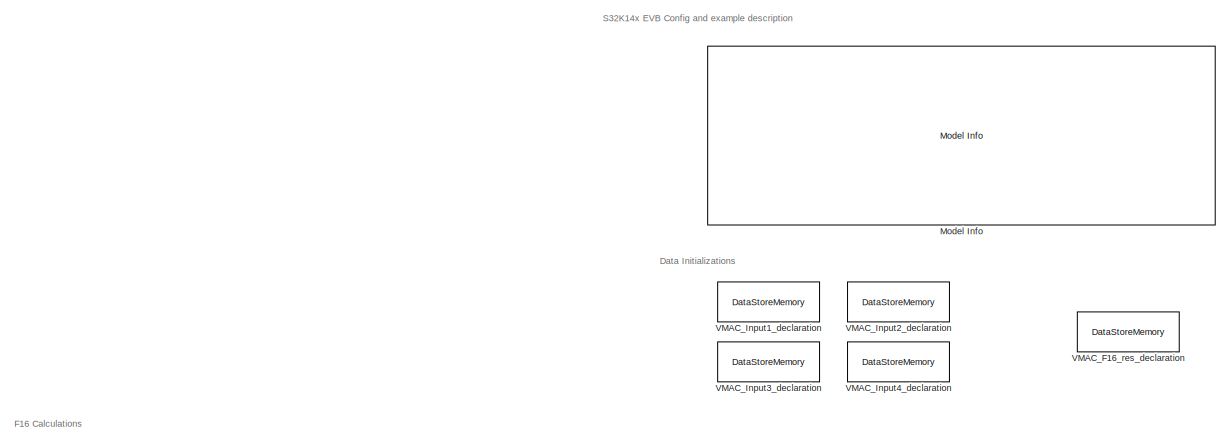
[diagram: root canvas - part 1/6, top left region]
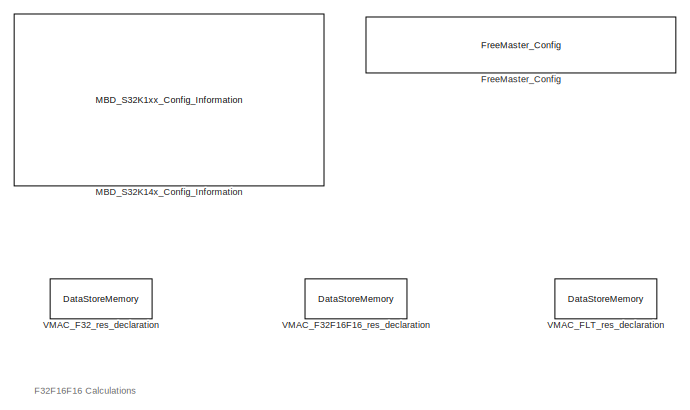
[diagram: root canvas - part 2/6, top center region]
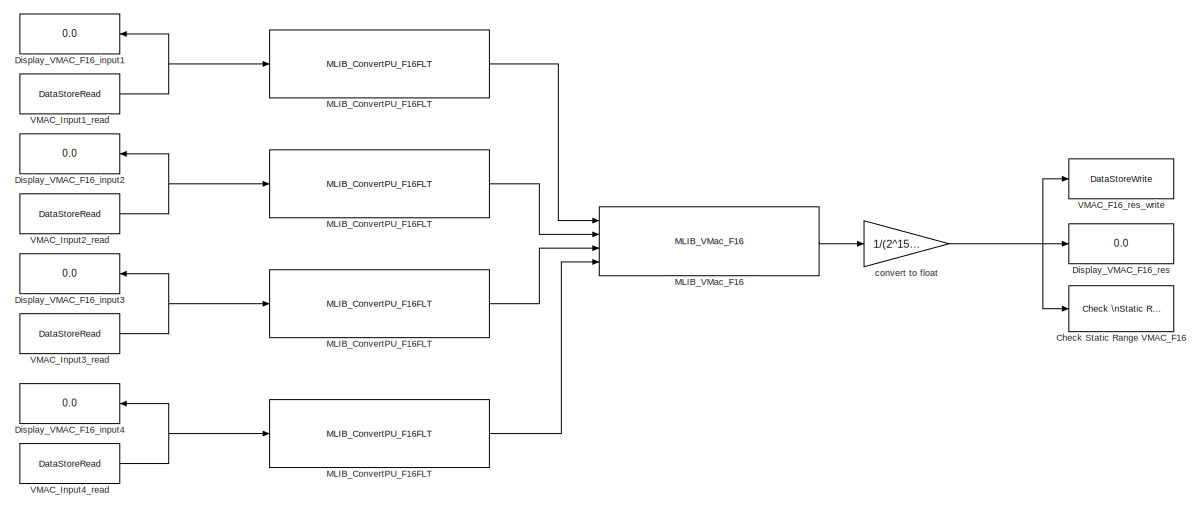
[diagram: root canvas - part 3/6, middle left region]
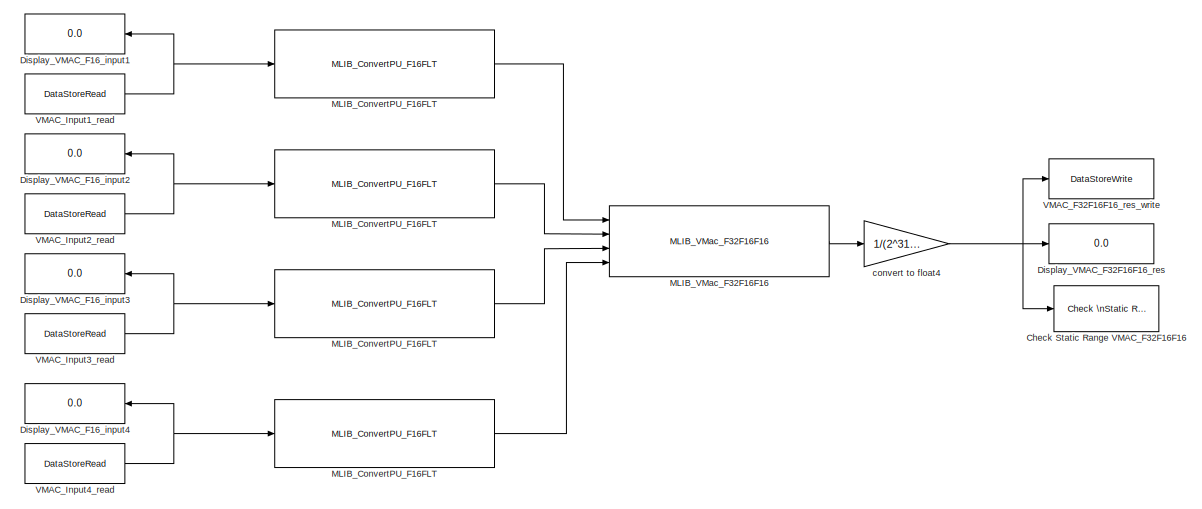
[diagram: root canvas - part 4/6, middle right region]
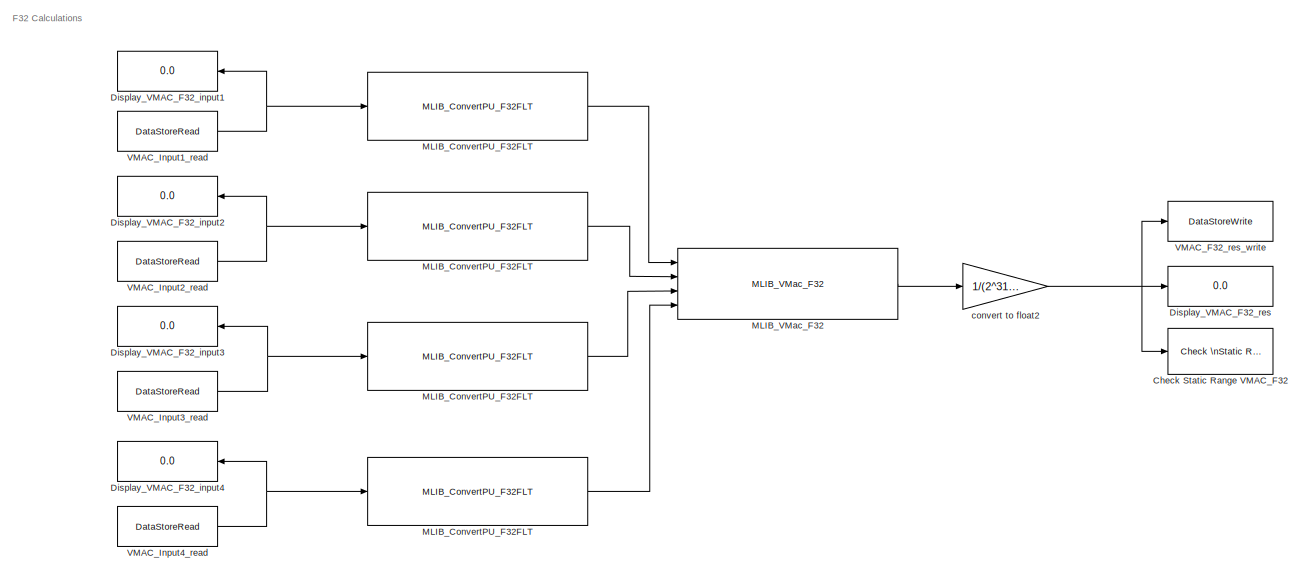
[diagram: root canvas - part 5/6, bottom left region]
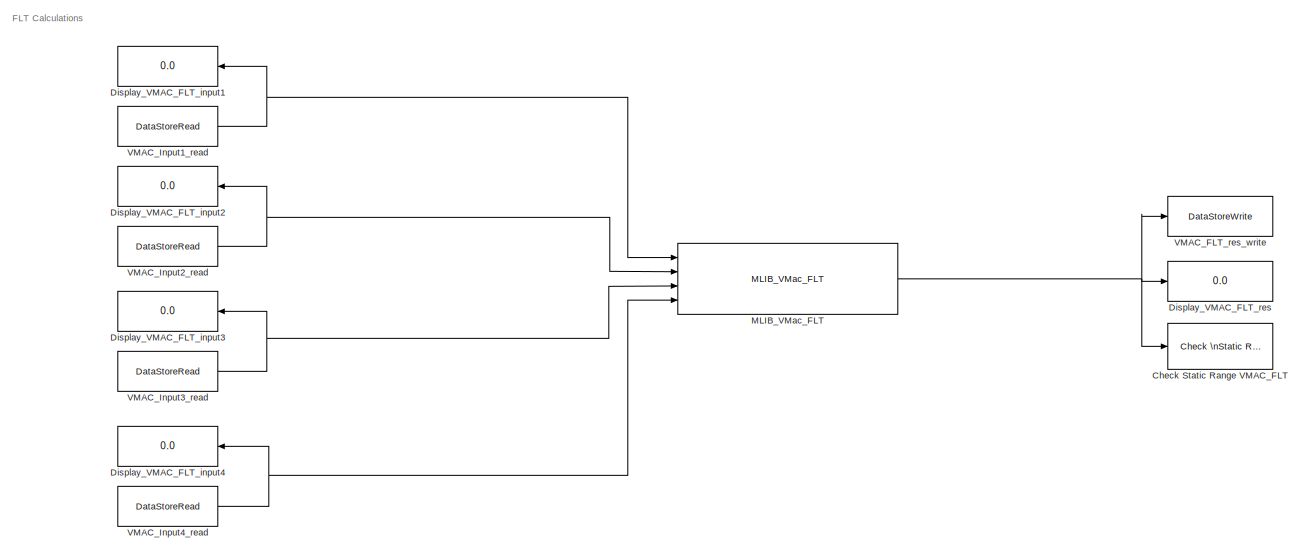
[diagram: root canvas - part 6/6, bottom right region]
MODEL ammclib_mlib_vmac_s32k14x
KIND model
CONFIG InitFcn = mbd_s32k_consistency_checks(bdroot(gcs));
BLOCK [Reference]    MLIB_ConvertPU_F16FLT    REF=ammclib_bam_s32k14x/MLIB/bam_f16/MLIB_ConvertPU_F16FLT  (lib defined in mdl_f341c9dd7fd9)
  Ports = [1, 1]
  SID = 747
  SourceBlock = ammclib_bam_s32k14x/MLIB/bam_f16/MLIB_ConvertPU_F16FLT
  SourceType = MLIB_ConvertPU_F16
BLOCK [Reference]   MLIB_ConvertPU_F16FLT   REF=ammclib_bam_s32k14x/MLIB/bam_f16/MLIB_ConvertPU_F16FLT  (lib defined in mdl_f341c9dd7fd9)
  Ports = [1, 1]
  SID = 752
  SourceBlock = ammclib_bam_s32k14x/MLIB/bam_f16/MLIB_ConvertPU_F16FLT
  SourceType = MLIB_ConvertPU_F16
BLOCK [Reference]   MLIB_ConvertPU_F16FLT     REF=ammclib_bam_s32k14x/MLIB/bam_f16/MLIB_ConvertPU_F16FLT  (lib defined in mdl_f341c9dd7fd9)
  Ports = [1, 1]
  SID = 753
  SourceBlock = ammclib_bam_s32k14x/MLIB/bam_f16/MLIB_ConvertPU_F16FLT
  SourceType = MLIB_ConvertPU_F16
BLOCK [Reference]   MLIB_ConvertPU_F16FLT       REF=ammclib_bam_s32k14x/MLIB/bam_f16/MLIB_ConvertPU_F16FLT  (lib defined in mdl_f341c9dd7fd9)
  Ports = [1, 1]
  SID = 754
  SourceBlock = ammclib_bam_s32k14x/MLIB/bam_f16/MLIB_ConvertPU_F16FLT
  SourceType = MLIB_ConvertPU_F16
BLOCK [DataStoreRead]   VMAC_Input4_read
  DataStoreName = VMAC_Input4
  Ports = [0, 1]
  SID = 759
BLOCK [Display]  Display_VMAC_F16_input3
  Decimation = 1
  Format = long
  Ports = [1]
  SID = 750
BLOCK [Display]  Display_VMAC_F16_input4
  Decimation = 1
  Format = long
  Ports = [1]
  SID = 751
BLOCK [Reference]  MLIB_ConvertPU_F16FLT  REF=ammclib_bam_s32k14x/MLIB/bam_f16/MLIB_ConvertPU_F16FLT  (lib defined in mdl_f341c9dd7fd9)
  Ports = [1, 1]
  SID = 734
  SourceBlock = ammclib_bam_s32k14x/MLIB/bam_f16/MLIB_ConvertPU_F16FLT
  SourceType = MLIB_ConvertPU_F16
BLOCK [DataStoreRead]  VMAC_Input3_read
  DataStoreName = VMAC_Input3
  Ports = [0, 1]
  SID = 758
BLOCK [Reference] Check Static Range VMAC_F16  REF=simulink/Model\nVerification/Check \nStatic Range
  Description = 0.194 <= u <= 0.196
  Ports = [1]
  SID = 585
  SourceBlock = simulink/Model\nVerification/Check \nStatic Range
  SourceProductBaseCode = SL
  SourceProductName = Simulink
  SourceType = Checks_SRange
  enabled = on
  export = off
  icon = graphic
  max = 0.196
  max_included = on
  min = 0.194
  min_included = on
  stopWhenAssertionFail = on
BLOCK [Reference] Check Static Range VMAC_F32   REF=simulink/Model\nVerification/Check \nStatic Range
  Description = 0.194 <= u <= 0.196
  Ports = [1]
  SID = 746
  SourceBlock = simulink/Model\nVerification/Check \nStatic Range
  SourceProductBaseCode = SL
  SourceProductName = Simulink
  SourceType = Checks_SRange
  enabled = on
  export = off
  icon = graphic
  max = 0.196
  max_included = on
  min = 0.194
  min_included = on
  stopWhenAssertionFail = on
BLOCK [Reference] Check Static Range VMAC_F32F16F16   REF=simulink/Model\nVerification/Check \nStatic Range
  Description = 0.194 <= u <= 0.196
  Ports = [1]
  SID = 761
  SourceBlock = simulink/Model\nVerification/Check \nStatic Range
  SourceProductBaseCode = SL
  SourceProductName = Simulink
  SourceType = Checks_SRange
  enabled = on
  export = off
  icon = graphic
  max = 0.196
  max_included = on
  min = 0.194
  min_included = on
  stopWhenAssertionFail = on
BLOCK [Reference] Check Static Range VMAC_FLT   REF=simulink/Model\nVerification/Check \nStatic Range
  Description = 0.194 <= u <= 0.196
  Ports = [1]
  SID = 767
  SourceBlock = simulink/Model\nVerification/Check \nStatic Range
  SourceProductBaseCode = SL
  SourceProductName = Simulink
  SourceType = Checks_SRange
  enabled = on
  export = off
  icon = graphic
  max = 0.196
  max_included = on
  min = 0.194
  min_included = on
  stopWhenAssertionFail = on
BLOCK [Display] Display_VMAC_F16_input1
  Decimation = 1
  Format = long
  Ports = [1]
  SID = 584
BLOCK [Display] Display_VMAC_F16_input1   
  Decimation = 1
  Format = long
  Ports = [1]
  SID = 748
BLOCK [Display] Display_VMAC_F16_input2
  Decimation = 1
  Format = long
  Ports = [1]
  SID = 634
BLOCK [Display] Display_VMAC_F16_input2    
  Decimation = 1
  Format = long
  Ports = [1]
  SID = 749
BLOCK [Display] Display_VMAC_F16_input3
  Decimation = 1
  Format = long
  Ports = [1]
  SID = 730
BLOCK [Display] Display_VMAC_F16_input4
  Decimation = 1
  Format = long
  Ports = [1]
  SID = 733
BLOCK [Display] Display_VMAC_F16_res
  Decimation = 1
  Format = long
  Ports = [1]
  SID = 579
BLOCK [Display] Display_VMAC_F32F16F16_res
  Decimation = 1
  Format = long
  Ports = [1]
  SID = 712
BLOCK [Display] Display_VMAC_F32_input1
  Decimation = 1
  Format = long
  Ports = [1]
  SID = 646
BLOCK [Display] Display_VMAC_F32_input2 
  Decimation = 1
  Format = long
  Ports = [1]
  SID = 647
BLOCK [Display] Display_VMAC_F32_input3
  Decimation = 1
  Format = long
  Ports = [1]
  SID = 739
BLOCK [Display] Display_VMAC_F32_input4
  Decimation = 1
  Format = long
  Ports = [1]
  SID = 742
BLOCK [Display] Display_VMAC_F32_res
  Decimation = 1
  Format = long
  Ports = [1]
  SID = 648
BLOCK [Display] Display_VMAC_FLT_input1
  Decimation = 1
  Format = long
  Ports = [1]
  SID = 667
BLOCK [Display] Display_VMAC_FLT_input2
  Decimation = 1
  Format = long
  Ports = [1]
  SID = 668
BLOCK [Display] Display_VMAC_FLT_input3
  Decimation = 1
  Format = long
  Ports = [1]
  SID = 762
BLOCK [Display] Display_VMAC_FLT_input4
  Decimation = 1
  Format = long
  Ports = [1]
  SID = 764
BLOCK [Display] Display_VMAC_FLT_res
  Decimation = 1
  Format = long
  Ports = [1]
  SID = 669
BLOCK [Reference] FreeMaster_Config  REF=mbd_s32k1xx_ec_toolbox/Utility Blocks/FreeMaster_Config
  Ports = []
  SID = 564
  SourceBlock = mbd_s32k1xx_ec_toolbox/Utility Blocks/FreeMaster_Config
  SourceType = fm_s32k_config
  baudrate = 115200
  comm_buffer_size = 255
  comm_buffer_size_auto = on
  comm_rqueue_size = 32
  comm_rqueue_size_default = on
  interface = LPUART1
  isr_prio = 15
  max_rec_vars = 8
  max_scope_vars = 8
  mode = Short Interrupt
  rec_buff_size = 1024
  rec_timebase = 0
  rec_timebase_unit = milliseconds
  rxd = PTC6: [LPUART1_RX | Receive]
  show_adv_opts = off
  txd = PTC7: [LPUART1_TX | Transmit]
  use_recorder = on
  use_scope = on
BLOCK [Reference] MBD_S32K14x_Config_Information  REF=mbd_s32k1xx_ec_toolbox/MBD_S32K1xx_Config_Information
  ADC_PcrCheckEnDis = on
  AMMCLIB_PcrCheckEnDis = on
  CMP_PcrCheckEnDis = on
  CSEc_PcrCheckEnDis = on
  ConfigParams_PcrCheckEnDis = on
  FM_PcrCheckEnDis = on
  FTM_Dual_Edge_Inputs_PcrCheckEnDis = on
  FTM_Hall_Sensor_Inputs_PcrCheckEnDis = on
  FTM_Input_Edge_Inputs_PcrCheckEnDis = on
  FTM_PWM_PcrCheckEnDis = on
  FTM_Quadrature_Inputs_PcrCheckEnDis = on
  FlexCAN_PcrCheckEnDis = on
  FlexIO_PcrCheckEnDis = on
  GPIO_InputPcrCheckEnDis = on
  GPIO_OutputPcrCheckEnDis = on
  LIN_PcrCheckEnDis = on
  LPI2C_PcrCheckEnDis = on
  LPSPI_PcrCheckEnDis = on
  LPTMR_PcrCheckEnDis = on
  LPUART_PcrCheckEnDis = on
  ModelRef_PcrCheckEnDis = on
  PDB0_PcrCheckEnDis = on
  PIT_PcrCheckEnDis = on
  Ports = []
  Priority = 0
  Profile_PcrCheckEnDis = on
  RTC_PcrCheckEnDis = on
  SBC_PcrCheckEnDis = on
  SID = 1
  SourceBlock = mbd_s32k1xx_ec_toolbox/MBD_S32K1xx_Config_Information
  SourceType = MBDTBX_EC_S32K
  WDOG_PcrCheckEnDis = on
  config_params = []
  disp_str = Target : S32K142-16KB_SRAM\nPackage : 100-pin\nSystem clock : 80 MHz\nXTAL clock : External 8 MHz\nCompiler : GCC\nTarget Type : FLASH\nDownload Code after build : (OpenSDA: E)\nStep Tick Interrupt Priority : 15
  ds_import_enable = on
  eDMA_PcrCheckEnDis = on
  gcc_target_assemble_opts = -mcpu=cortex-m4 -mthumb -mfloat-abi=hard -mfpu=fpv4-sp-d16 -g
  gcc_target_compile_opts = -mcpu=cortex-m4 -mthumb -mfloat-abi=hard -mfpu=fpv4-sp-d16 -O1 -g -gstrict-dwarf
  gcc_target_default_lcf = on
  gcc_target_link_opts = -mcpu=cortex-m4 -mthumb -mfloat-abi=hard -mfpu=fpv4-sp-d16
  gcc_target_user_lcf = S32K144_64_flash.ld
  ghs_target_assemble_opts = -cpu=cortexm4f -fpu=vfpv4_d16
  ghs_target_compile_opts = -cpu=cortexm4f -thumb -DARM_MATH_CM4 -fpu=vfpv4_d16 -fsingle -Ogeneral -Wundef -Wimplicit-int -Wshadow -Wtrigraphs --no_commons --gnu_asm -gnu99 -gdwarf-2 -G
  ghs_target_default_lcf = off
  ghs_target_link_opts = -cpu=cortexm4f -thumb -fpu=vfpv4_d16
  ghs_target_user_lcf = S32K144_64_flash.ld
  iar_target_assemble_opts = --cpu Cortex-M4F --thumb --fpu VFPv4_sp
  iar_target_compile_opts = --cpu=Cortex-M4F --thumb --fpu=VFPv4_sp -Ol -e --debug --dlib_config normal
  iar_target_default_lcf = off
  iar_target_link_opts = --no_exceptions --vfe --inline
  iar_target_user_lcf = S32K144_64_flash.icf
  mbdt_ver = 0
  mcu_steptick_prio = 15
  mcu_steptick_timer = LPIT Channel 0
  mcu_system_clock_freq = 80
  mcu_target_name = S32K144
  mcu_target_package = 100-LQFP
  mcu_target_sram_size = 64KB
  mcu_xtal_freq = External 8
  pil_download_enable = off
  pil_download_rate = 57600
  pil_opensda_drive = Custom
  pil_opensda_drive_custom = D
  pil_uart_instance = 1
  pil_uart_rx = PTC6: [LPUART1_RX | Receive]
  pil_uart_tx = PTC7: [LPUART1_TX | Transmit]
  rbl_com_port = Custom
  rbl_com_port_custom = COM1
  rbl_download_enable = on
  rbl_download_interface = OpenSDA
  rbl_restart_request = off
  rbl_start_delay = 5000000
  target_compiler = GCC
  target_memory = FLASH
BLOCK [Reference] MLIB_ConvertPU_F16FLT  REF=ammclib_bam_s32k14x/MLIB/bam_f16/MLIB_ConvertPU_F16FLT  (lib defined in mdl_f341c9dd7fd9)
  Ports = [1, 1]
  SID = 569
  SourceBlock = ammclib_bam_s32k14x/MLIB/bam_f16/MLIB_ConvertPU_F16FLT
  SourceType = MLIB_ConvertPU_F16
BLOCK [Reference] MLIB_ConvertPU_F16FLT   REF=ammclib_bam_s32k14x/MLIB/bam_f16/MLIB_ConvertPU_F16FLT  (lib defined in mdl_f341c9dd7fd9)
  Ports = [1, 1]
  SID = 635
  SourceBlock = ammclib_bam_s32k14x/MLIB/bam_f16/MLIB_ConvertPU_F16FLT
  SourceType = MLIB_ConvertPU_F16
BLOCK [Reference] MLIB_ConvertPU_F16FLT      REF=ammclib_bam_s32k14x/MLIB/bam_f16/MLIB_ConvertPU_F16FLT  (lib defined in mdl_f341c9dd7fd9)
  Ports = [1, 1]
  SID = 731
  SourceBlock = ammclib_bam_s32k14x/MLIB/bam_f16/MLIB_ConvertPU_F16FLT
  SourceType = MLIB_ConvertPU_F16
BLOCK [Reference] MLIB_ConvertPU_F32FLT  REF=ammclib_bam_s32k14x/MLIB/bam_f32/MLIB_ConvertPU_F32FLT  (lib defined in mdl_f341c9dd7fd9)
  Ports = [1, 1]
  SID = 658
  SourceBlock = ammclib_bam_s32k14x/MLIB/bam_f32/MLIB_ConvertPU_F32FLT
  SourceType = MLIB_ConvertPU_F32
BLOCK [Reference] MLIB_ConvertPU_F32FLT   REF=ammclib_bam_s32k14x/MLIB/bam_f32/MLIB_ConvertPU_F32FLT  (lib defined in mdl_f341c9dd7fd9)
  Ports = [1, 1]
  SID = 659
  SourceBlock = ammclib_bam_s32k14x/MLIB/bam_f32/MLIB_ConvertPU_F32FLT
  SourceType = MLIB_ConvertPU_F32
BLOCK [Reference] MLIB_ConvertPU_F32FLT     REF=ammclib_bam_s32k14x/MLIB/bam_f32/MLIB_ConvertPU_F32FLT  (lib defined in mdl_f341c9dd7fd9)
  Ports = [1, 1]
  SID = 740
  SourceBlock = ammclib_bam_s32k14x/MLIB/bam_f32/MLIB_ConvertPU_F32FLT
  SourceType = MLIB_ConvertPU_F32
BLOCK [Reference] MLIB_ConvertPU_F32FLT      REF=ammclib_bam_s32k14x/MLIB/bam_f32/MLIB_ConvertPU_F32FLT  (lib defined in mdl_f341c9dd7fd9)
  Ports = [1, 1]
  SID = 743
  SourceBlock = ammclib_bam_s32k14x/MLIB/bam_f32/MLIB_ConvertPU_F32FLT
  SourceType = MLIB_ConvertPU_F32
BLOCK [Reference] MLIB_VMac_F16  REF=ammclib_bam_s32k14x/MLIB/bam_f16/MLIB_VMac_F16  (lib defined in mdl_f341c9dd7fd9)
  Ports = [4, 1]
  SID = 736
  SourceBlock = ammclib_bam_s32k14x/MLIB/bam_f16/MLIB_VMac_F16
  SourceType = MLIB_VMac_F16
BLOCK [Reference] MLIB_VMac_F32  REF=ammclib_bam_s32k14x/MLIB/bam_f32/MLIB_VMac_F32  (lib defined in mdl_f341c9dd7fd9)
  Ports = [4, 1]
  SID = 745
  SourceBlock = ammclib_bam_s32k14x/MLIB/bam_f32/MLIB_VMac_F32
  SourceType = MLIB_VMac_F32
BLOCK [Reference] MLIB_VMac_F32F16F16  REF=ammclib_bam_s32k14x/MLIB/bam_f32f16f16/MLIB_VMac_F32F16F16  (lib defined in mdl_f341c9dd7fd9)
  Ports = [4, 1]
  SID = 760
  SourceBlock = ammclib_bam_s32k14x/MLIB/bam_f32f16f16/MLIB_VMac_F32F16F16
  SourceType = MLIB_VMac_F32F16F16
BLOCK [Reference] MLIB_VMac_FLT  REF=ammclib_bam_s32k14x/MLIB/bam_flt/MLIB_VMac_FLT  (lib defined in mdl_f341c9dd7fd9)
  Ports = [4, 1]
  SID = 766
  SourceBlock = ammclib_bam_s32k14x/MLIB/bam_flt/MLIB_VMac_FLT
  SourceType = MLIB_VMac_FLT
BLOCK [Reference] Model Info  REF=simulink/Model-Wide\nUtilities/Model Info
  DisplayStringWithTags = Model Name: %<ModelName>\n\nDescription: %<Description>
  Frame = off
  HorizontalTextAlignment = Left
  LeftAlignmentValue = 0.02
  MaskDisplayString = Model Name: ammclib_mlib_vmac_s32k14x\\n\\nDescription: This model tests the AMMCLIB MLIB VMAC blocks\\n\\nValidation:\\n- Run the model in Simulation and compare the Inputs vs Outputs results.\\n- Open Freemaster (ammclib_mlib_vmac_s32k14x.pmp) and compare the HW results against the Simulated ones
  Ports = []
  SID = 524
  SourceBlock = simulink/Model-Wide\nUtilities/Model Info
  SourceProductBaseCode = SL
  SourceProductName = Simulink
  SourceType = CMBlock
BLOCK [DataStoreMemory] VMAC_F16_res_declaration
  DataStoreName = VMAC_F16_res
  OutDataTypeStr = single
  Priority = 2
  ReadBeforeWriteMsg = warning
  SID = 580
  ShowAdditionalParam = off
  WriteAfterReadMsg = warning
  WriteAfterWriteMsg = warning
BLOCK [DataStoreWrite] VMAC_F16_res_write
  DataStoreName = VMAC_F16_res
  Ports = [1]
  SID = 581
BLOCK [DataStoreMemory] VMAC_F32F16F16_res_declaration
  DataStoreName = VMAC_F32F16F16_res
  OutDataTypeStr = single
  Priority = 2
  ReadBeforeWriteMsg = warning
  SID = 688
  ShowAdditionalParam = off
  WriteAfterReadMsg = warning
  WriteAfterWriteMsg = warning
BLOCK [DataStoreWrite] VMAC_F32F16F16_res_write
  DataStoreName = VMAC_F32F16F16_res
  Ports = [1]
  SID = 718
BLOCK [DataStoreMemory] VMAC_F32_res_declaration
  DataStoreName = VMAC_F32_res
  OutDataTypeStr = single
  Priority = 2
  ReadBeforeWriteMsg = warning
  SID = 610
  ShowAdditionalParam = off
  WriteAfterReadMsg = warning
  WriteAfterWriteMsg = warning
BLOCK [DataStoreWrite] VMAC_F32_res_write
  DataStoreName = VMAC_F32_res
  Ports = [1]
  SID = 640
BLOCK [DataStoreMemory] VMAC_FLT_res_declaration
  DataStoreName = VMAC_FLT_res
  OutDataTypeStr = single
  Priority = 2
  ReadBeforeWriteMsg = warning
  SID = 630
  ShowAdditionalParam = off
  WriteAfterReadMsg = warning
  WriteAfterWriteMsg = warning
BLOCK [DataStoreWrite] VMAC_FLT_res_write
  DataStoreName = VMAC_FLT_res
  Ports = [1]
  SID = 661
BLOCK [DataStoreMemory] VMAC_Input1_declaration
  DataStoreName = VMAC_Input1
  InitialValue = 0.25
  OutDataTypeStr = single
  OutMax = 1
  OutMin = -1
  Priority = 1
  SID = 582
  ShowAdditionalParam = off
  WriteAfterReadMsg = warning
  WriteAfterWriteMsg = warning
BLOCK [DataStoreRead] VMAC_Input1_read
  DataStoreName = VMAC_Input1
  Ports = [0, 1]
  SID = 583
BLOCK [DataStoreRead] VMAC_Input1_read 
  DataStoreName = VMAC_Input1
  Ports = [0, 1]
  SID = 641
BLOCK [DataStoreRead] VMAC_Input1_read  
  DataStoreName = VMAC_Input1
  Ports = [0, 1]
  SID = 662
BLOCK [DataStoreRead] VMAC_Input1_read   
  DataStoreName = VMAC_Input1
  Ports = [0, 1]
  SID = 756
BLOCK [DataStoreMemory] VMAC_Input2_declaration
  DataStoreName = VMAC_Input2
  InitialValue = 0.15
  OutDataTypeStr = single
  OutMax = 1
  OutMin = -1
  Priority = 1
  SID = 632
  ShowAdditionalParam = off
  WriteAfterReadMsg = warning
  WriteAfterWriteMsg = warning
BLOCK [DataStoreRead] VMAC_Input2_read
  DataStoreName = VMAC_Input2
  Ports = [0, 1]
  SID = 633
BLOCK [DataStoreRead] VMAC_Input2_read 
  DataStoreName = VMAC_Input2
  Ports = [0, 1]
  SID = 642
BLOCK [DataStoreRead] VMAC_Input2_read   
  DataStoreName = VMAC_Input2
  Ports = [0, 1]
  SID = 663
BLOCK [DataStoreRead] VMAC_Input2_read     
  DataStoreName = VMAC_Input2
  Ports = [0, 1]
  SID = 757
BLOCK [DataStoreMemory] VMAC_Input3_declaration
  DataStoreName = VMAC_Input3
  InitialValue = 0.35
  OutDataTypeStr = single
  OutMax = 1
  OutMin = -1
  Priority = 1
  SID = 728
  ShowAdditionalParam = off
  WriteAfterReadMsg = warning
  WriteAfterWriteMsg = warning
BLOCK [DataStoreRead] VMAC_Input3_read
  DataStoreName = VMAC_Input3
  Ports = [0, 1]
  SID = 732
BLOCK [DataStoreRead] VMAC_Input3_read   
  DataStoreName = VMAC_Input3
  Ports = [0, 1]
  SID = 741
BLOCK [DataStoreRead] VMAC_Input3_read    
  DataStoreName = VMAC_Input3
  Ports = [0, 1]
  SID = 763
BLOCK [DataStoreMemory] VMAC_Input4_declaration
  DataStoreName = VMAC_Input4
  InitialValue = 0.45
  OutDataTypeStr = single
  OutMax = 1
  OutMin = -1
  Priority = 1
  SID = 729
  ShowAdditionalParam = off
  WriteAfterReadMsg = warning
  WriteAfterWriteMsg = warning
BLOCK [DataStoreRead] VMAC_Input4_read
  DataStoreName = VMAC_Input4
  Ports = [0, 1]
  SID = 735
BLOCK [DataStoreRead] VMAC_Input4_read  
  DataStoreName = VMAC_Input4
  Ports = [0, 1]
  SID = 744
BLOCK [DataStoreRead] VMAC_Input4_read     
  DataStoreName = VMAC_Input4
  Ports = [0, 1]
  SID = 765
BLOCK [Gain] convert to float
  Gain = 1/(2^15-1)
  OutDataTypeStr = Inherit: Inherit via back propagation
  ParamDataTypeStr = Inherit: Inherit via internal rule
  SID = 578
  SaturateOnIntegerOverflow = off
BLOCK [Gain] convert to float2
  Gain = 1/(2^31-1)
  OutDataTypeStr = Inherit: Inherit via back propagation
  ParamDataTypeStr = Inherit: Inherit via internal rule
  SID = 653
  SaturateOnIntegerOverflow = off
BLOCK [Gain] convert to float4
  Gain = 1/(2^31-1)
  OutDataTypeStr = Inherit: Inherit via back propagation
  ParamDataTypeStr = Inherit: Inherit via internal rule
  SID = 721
  SaturateOnIntegerOverflow = off
ANNOTATION (root): Data Initializations
ANNOTATION (root): F16 Calculations
ANNOTATION (root): F32 Calculations
ANNOTATION (root): F32F16F16 Calculations
ANNOTATION (root): FLT Calculations
ANNOTATION (root): S32K14x EVB Config and example description
LINE    MLIB_ConvertPU_F16FLT  :1 -> MLIB_VMac_F32F16F16:4
LINE   MLIB_ConvertPU_F16FLT     :1 -> MLIB_VMac_F32F16F16:3
LINE   MLIB_ConvertPU_F16FLT   :1 -> MLIB_VMac_F32F16F16:2
LINE   MLIB_ConvertPU_F16FLT :1 -> MLIB_VMac_F32F16F16:1
NET   VMAC_Input4_read:1 ->    MLIB_ConvertPU_F16FLT  :1,  Display_VMAC_F16_input4:1
LINE  MLIB_ConvertPU_F16FLT:1 -> MLIB_VMac_F16:4
NET  VMAC_Input3_read:1 ->   MLIB_ConvertPU_F16FLT     :1,  Display_VMAC_F16_input3:1
LINE MLIB_ConvertPU_F16FLT    :1 -> MLIB_VMac_F16:3
LINE MLIB_ConvertPU_F16FLT :1 -> MLIB_VMac_F16:2
LINE MLIB_ConvertPU_F16FLT:1 -> MLIB_VMac_F16:1
LINE MLIB_ConvertPU_F32FLT    :1 -> MLIB_VMac_F32:4
LINE MLIB_ConvertPU_F32FLT   :1 -> MLIB_VMac_F32:3
LINE MLIB_ConvertPU_F32FLT :1 -> MLIB_VMac_F32:2
LINE MLIB_ConvertPU_F32FLT:1 -> MLIB_VMac_F32:1
LINE MLIB_VMac_F16:1 -> convert to float:1
LINE MLIB_VMac_F32:1 -> convert to float2:1
LINE MLIB_VMac_F32F16F16:1 -> convert to float4:1
NET MLIB_VMac_FLT:1 -> Check Static Range VMAC_FLT :1, Display_VMAC_FLT_res:1, VMAC_FLT_res_write:1
NET VMAC_Input1_read   :1 ->   MLIB_ConvertPU_F16FLT :1, Display_VMAC_F16_input1   :1
NET VMAC_Input1_read  :1 -> Display_VMAC_FLT_input1:1, MLIB_VMac_FLT:1
NET VMAC_Input1_read :1 -> Display_VMAC_F32_input1:1, MLIB_ConvertPU_F32FLT:1
NET VMAC_Input1_read:1 -> Display_VMAC_F16_input1:1, MLIB_ConvertPU_F16FLT:1
NET VMAC_Input2_read     :1 ->   MLIB_ConvertPU_F16FLT   :1, Display_VMAC_F16_input2    :1
NET VMAC_Input2_read   :1 -> Display_VMAC_FLT_input2:1, MLIB_VMac_FLT:2
NET VMAC_Input2_read :1 -> Display_VMAC_F32_input2 :1, MLIB_ConvertPU_F32FLT :1
NET VMAC_Input2_read:1 -> Display_VMAC_F16_input2:1, MLIB_ConvertPU_F16FLT :1
NET VMAC_Input3_read    :1 -> Display_VMAC_FLT_input3:1, MLIB_VMac_FLT:3
NET VMAC_Input3_read   :1 -> Display_VMAC_F32_input3:1, MLIB_ConvertPU_F32FLT   :1
NET VMAC_Input3_read:1 -> Display_VMAC_F16_input3:1, MLIB_ConvertPU_F16FLT    :1
NET VMAC_Input4_read     :1 -> Display_VMAC_FLT_input4:1, MLIB_VMac_FLT:4
NET VMAC_Input4_read  :1 -> Display_VMAC_F32_input4:1, MLIB_ConvertPU_F32FLT    :1
NET VMAC_Input4_read:1 ->  MLIB_ConvertPU_F16FLT:1, Display_VMAC_F16_input4:1
NET convert to float2:1 -> Check Static Range VMAC_F32 :1, Display_VMAC_F32_res:1, VMAC_F32_res_write:1
NET convert to float4:1 -> Check Static Range VMAC_F32F16F16 :1, Display_VMAC_F32F16F16_res:1, VMAC_F32F16F16_res_write:1
NET convert to float:1 -> Check Static Range VMAC_F16:1, Display_VMAC_F16_res:1, VMAC_F16_res_write:1
note: NET lines group one-source signal fan-out (src -> all destinations, sorted); 1:1 wires keep LINE
